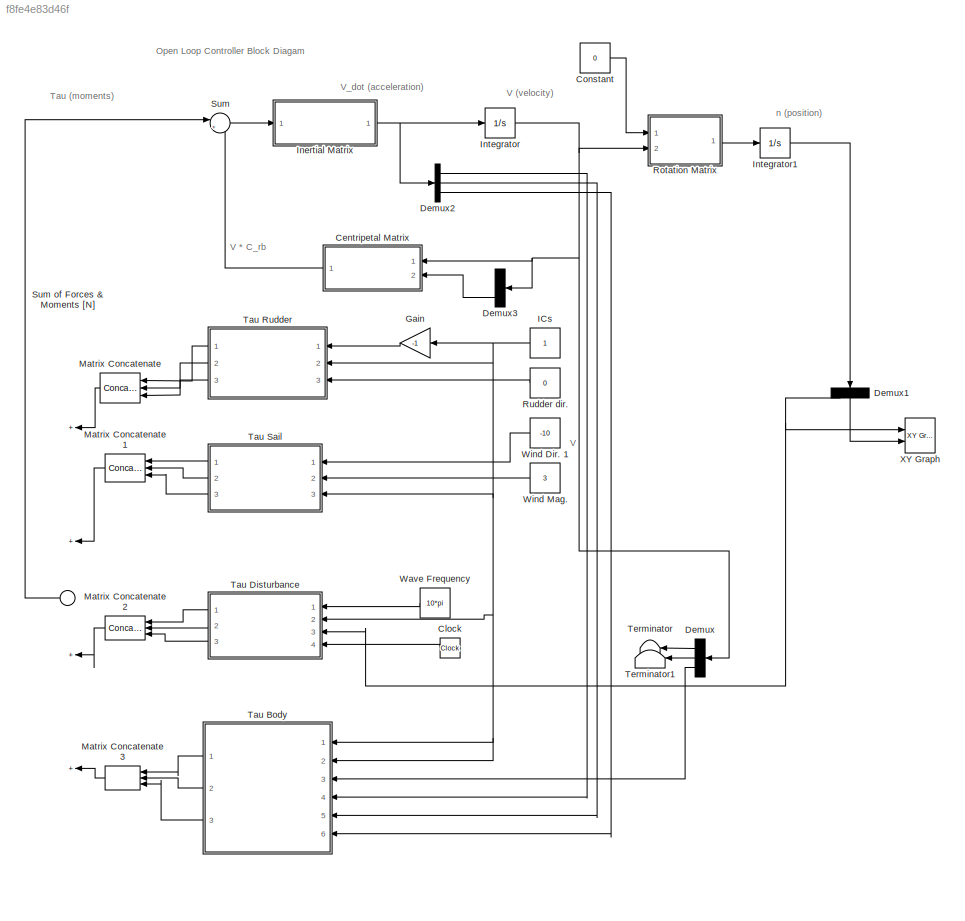
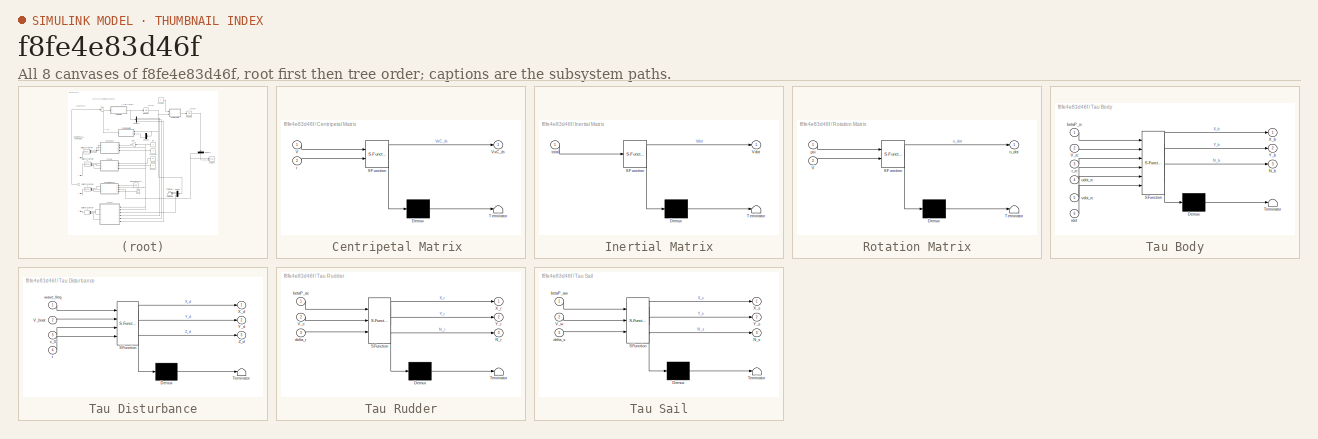
[diagram: thumbnail index - all 8 canvases of the model, root first then tree order]
MODEL slx_f8fe4e83d46f
KIND model
CONFIG AbsTol = auto
CONFIG EnableMultiTasking = off
CONFIG FixedStep = auto
CONFIG MaxStep = auto
CONFIG MinStep = auto
CONFIG PreLoadFcn = load('Sailboat_Constants_1.mat')
CONFIG RelTol = 1e-3
CONFIG SampleTimeConstraint = Unconstrained
CONFIG Solver = VariableStepAuto
CONFIG SolverName = VariableStepAuto
CONFIG StartTime = 0.0
CONFIG StopTime = 10.0
BLOCK [SubSystem] Centripetal Matrix 
  ErrorFcn = Stateflow.Translate.translate
  PermitHierarchicalResolution = ExplicitOnly
  Ports = [2, 1]
  RequestExecContextInheritance = off
  SFBlockType = MATLAB Function
  TreatAsAtomicUnit = on
  Variant = off
BLOCK [Demux] Centripetal Matrix / Demux 
  Outputs = 1
  Ports = [1, 1]
BLOCK [S-Function] Centripetal Matrix / SFunction 
  EnableBusSupport = on
  FunctionName = sf_sfun
  PortCounts = [2 2]
  Ports = [2, 2]
  SFcnIsStateOwnerBlock = off
  SFunctionDeploymentMode = off
  Tag = Stateflow S-Function Open_loop_sailboat 7
BLOCK [Terminator] Centripetal Matrix / Terminator 
BLOCK [Inport] Centripetal Matrix /V
  IconDisplay = Port number
BLOCK [Outport] Centripetal Matrix /VxC_rb
  IconDisplay = Port number
BLOCK [Inport] Centripetal Matrix /r
  IconDisplay = Port number
  Port = 2
BLOCK [Clock] Clock
BLOCK [Constant] Constant
  Value = 0
BLOCK [Demux] Demux
  DisplayOption = bar
  Outputs = 3
  Ports = [1, 3]
BLOCK [Demux] Demux1
  DisplayOption = bar
  Outputs = 3
  Ports = [1, 3]
BLOCK [Demux] Demux2
  DisplayOption = bar
  Outputs = 3
  Ports = [1, 3]
BLOCK [Demux] Demux3
  DisplayOption = bar
  Outputs = 3
  Ports = [1, 3]
BLOCK [Gain] Gain
  Gain = -1
  OutDataTypeStr = Inherit: Inherit via internal rule
  ParamDataTypeStr = Inherit: Inherit via internal rule
  SaturateOnIntegerOverflow = off
BLOCK [Constant] ICs
BLOCK [SubSystem] Inertial Matrix
  ErrorFcn = Stateflow.Translate.translate
  PermitHierarchicalResolution = ExplicitOnly
  Ports = [1, 1]
  RequestExecContextInheritance = off
  SFBlockType = MATLAB Function
  TreatAsAtomicUnit = on
  Variant = off
BLOCK [Demux] Inertial Matrix/ Demux 
  Outputs = 1
  Ports = [1, 1]
BLOCK [S-Function] Inertial Matrix/ SFunction 
  EnableBusSupport = on
  FunctionName = sf_sfun
  PortCounts = [1 2]
  Ports = [1, 2]
  SFcnIsStateOwnerBlock = off
  SFunctionDeploymentMode = off
  Tag = Stateflow S-Function Open_loop_sailboat 5
BLOCK [Terminator] Inertial Matrix/ Terminator 
BLOCK [Outport] Inertial Matrix/Vdot
  IconDisplay = Port number
BLOCK [Inport] Inertial Matrix/total
  IconDisplay = Port number
BLOCK [Integrator] Integrator
  Ports = [1, 1]
BLOCK [Integrator] Integrator1
  Ports = [1, 1]
BLOCK [Concatenate] Matrix Concatenate
  Mode = Multidimensional array
  NumInputs = 3
  Ports = [3, 1]
BLOCK [Concatenate] Matrix Concatenate1
  Mode = Multidimensional array
  NumInputs = 3
  Ports = [3, 1]
BLOCK [Concatenate] Matrix Concatenate2
  Mode = Multidimensional array
  NumInputs = 3
  Ports = [3, 1]
BLOCK [Concatenate] Matrix Concatenate3
  Mode = Multidimensional array
  NumInputs = 3
  Ports = [3, 1]
BLOCK [SubSystem] Rotation Matrix
  ErrorFcn = Stateflow.Translate.translate
  PermitHierarchicalResolution = ExplicitOnly
  Ports = [2, 1]
  RequestExecContextInheritance = off
  SFBlockType = MATLAB Function
  TreatAsAtomicUnit = on
  Variant = off
BLOCK [Demux] Rotation Matrix/ Demux 
  Outputs = 1
  Ports = [1, 1]
BLOCK [S-Function] Rotation Matrix/ SFunction 
  EnableBusSupport = on
  FunctionName = sf_sfun
  PortCounts = [2 2]
  Ports = [2, 2]
  SFcnIsStateOwnerBlock = off
  SFunctionDeploymentMode = off
  Tag = Stateflow S-Function Open_loop_sailboat 6
BLOCK [Terminator] Rotation Matrix/ Terminator 
BLOCK [Inport] Rotation Matrix/V
  IconDisplay = Port number
  Port = 2
BLOCK [Outport] Rotation Matrix/n_dot
  IconDisplay = Port number
BLOCK [Inport] Rotation Matrix/psi
  IconDisplay = Port number
BLOCK [Constant] Rudder dir.
  Value = 0
BLOCK [Sum] Sum
  IconShape = round
  InputSameDT = off
  Inputs = |+-
  OutDataTypeStr = Inherit: Inherit via internal rule
  Ports = [2, 1]
  SaturateOnIntegerOverflow = off
BLOCK [Sum] Sum of Forces & Moments [N] 
  InputSameDT = off
  Inputs = ++++
  OutDataTypeStr = Inherit: Inherit via internal rule
  Ports = [4, 1]
  SaturateOnIntegerOverflow = off
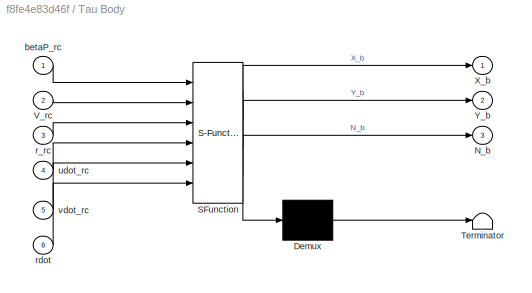
BLOCK [SubSystem] Tau Body
  ErrorFcn = Stateflow.Translate.translate
  PermitHierarchicalResolution = ExplicitOnly
  Ports = [6, 3]
  RequestExecContextInheritance = off
  SFBlockType = MATLAB Function
  TreatAsAtomicUnit = on
  Variant = off
BLOCK [Demux] Tau Body/ Demux 
  Outputs = 1
  Ports = [1, 1]
BLOCK [S-Function] Tau Body/ SFunction 
  EnableBusSupport = on
  FunctionName = sf_sfun
  PortCounts = [6 4]
  Ports = [6, 4]
  SFcnIsStateOwnerBlock = off
  SFunctionDeploymentMode = off
  Tag = Stateflow S-Function Open_loop_sailboat 3
BLOCK [Terminator] Tau Body/ Terminator 
BLOCK [Outport] Tau Body/N_b
  IconDisplay = Port number
  Port = 3
BLOCK [Inport] Tau Body/V_rc
  IconDisplay = Port number
  Port = 2
BLOCK [Outport] Tau Body/X_b
  IconDisplay = Port number
BLOCK [Outport] Tau Body/Y_b
  IconDisplay = Port number
  Port = 2
BLOCK [Inport] Tau Body/betaP_rc
  IconDisplay = Port number
BLOCK [Inport] Tau Body/r_rc
  IconDisplay = Port number
  Port = 3
BLOCK [Inport] Tau Body/rdot
  IconDisplay = Port number
  Port = 6
BLOCK [Inport] Tau Body/udot_rc
  IconDisplay = Port number
  Port = 4
BLOCK [Inport] Tau Body/vdot_rc
  IconDisplay = Port number
  Port = 5
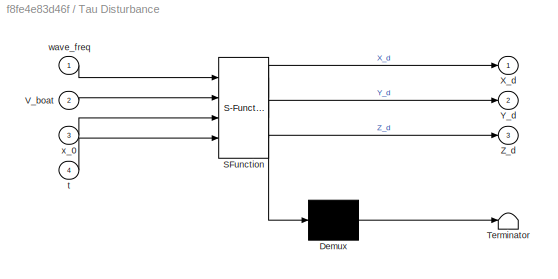
BLOCK [SubSystem] Tau Disturbance
  ErrorFcn = Stateflow.Translate.translate
  PermitHierarchicalResolution = ExplicitOnly
  Ports = [4, 3]
  RequestExecContextInheritance = off
  SFBlockType = MATLAB Function
  TreatAsAtomicUnit = on
  Variant = off
BLOCK [Demux] Tau Disturbance/ Demux 
  Outputs = 1
  Ports = [1, 1]
BLOCK [S-Function] Tau Disturbance/ SFunction 
  EnableBusSupport = on
  FunctionName = sf_sfun
  PortCounts = [4 4]
  Ports = [4, 4]
  SFcnIsStateOwnerBlock = off
  SFunctionDeploymentMode = off
  Tag = Stateflow S-Function Open_loop_sailboat 4
BLOCK [Terminator] Tau Disturbance/ Terminator 
BLOCK [Inport] Tau Disturbance/V_boat
  IconDisplay = Port number
  Port = 2
BLOCK [Outport] Tau Disturbance/X_d
  IconDisplay = Port number
BLOCK [Outport] Tau Disturbance/Y_d
  IconDisplay = Port number
  Port = 2
BLOCK [Outport] Tau Disturbance/Z_d
  IconDisplay = Port number
  Port = 3
BLOCK [Inport] Tau Disturbance/t
  IconDisplay = Port number
  Port = 4
BLOCK [Inport] Tau Disturbance/wave_freq
  IconDisplay = Port number
BLOCK [Inport] Tau Disturbance/x_0
  IconDisplay = Port number
  Port = 3
BLOCK [SubSystem] Tau Rudder
  ErrorFcn = Stateflow.Translate.translate
  PermitHierarchicalResolution = ExplicitOnly
  Ports = [3, 3]
  RequestExecContextInheritance = off
  SFBlockType = MATLAB Function
  TreatAsAtomicUnit = on
  Variant = off
BLOCK [Demux] Tau Rudder/ Demux 
  Outputs = 1
  Ports = [1, 1]
BLOCK [S-Function] Tau Rudder/ SFunction 
  EnableBusSupport = on
  FunctionName = sf_sfun
  PortCounts = [3 4]
  Ports = [3, 4]
  SFcnIsStateOwnerBlock = off
  SFunctionDeploymentMode = off
  Tag = Stateflow S-Function Open_loop_sailboat 2
BLOCK [Terminator] Tau Rudder/ Terminator 
BLOCK [Outport] Tau Rudder/N_r
  IconDisplay = Port number
  Port = 3
BLOCK [Inport] Tau Rudder/V_c
  IconDisplay = Port number
  Port = 2
BLOCK [Outport] Tau Rudder/X_r
  IconDisplay = Port number
BLOCK [Outport] Tau Rudder/Y_r
  IconDisplay = Port number
  Port = 2
BLOCK [Inport] Tau Rudder/betaP_ac
  IconDisplay = Port number
BLOCK [Inport] Tau Rudder/delta_r
  IconDisplay = Port number
  Port = 3
BLOCK [SubSystem] Tau Sail
  ErrorFcn = Stateflow.Translate.translate
  PermitHierarchicalResolution = ExplicitOnly
  Ports = [3, 3]
  RequestExecContextInheritance = off
  SFBlockType = MATLAB Function
  TreatAsAtomicUnit = on
  Variant = off
BLOCK [Demux] Tau Sail/ Demux 
  Outputs = 1
  Ports = [1, 1]
BLOCK [S-Function] Tau Sail/ SFunction 
  EnableBusSupport = on
  FunctionName = sf_sfun
  PortCounts = [3 4]
  Ports = [3, 4]
  SFcnIsStateOwnerBlock = off
  SFunctionDeploymentMode = off
  Tag = Stateflow S-Function Open_loop_sailboat 1
BLOCK [Terminator] Tau Sail/ Terminator 
BLOCK [Outport] Tau Sail/N_s
  IconDisplay = Port number
  Port = 3
BLOCK [Inport] Tau Sail/V_w
  IconDisplay = Port number
  Port = 2
BLOCK [Outport] Tau Sail/X_s
  IconDisplay = Port number
BLOCK [Outport] Tau Sail/Y_s
  IconDisplay = Port number
  Port = 2
BLOCK [Inport] Tau Sail/betaP_aw
  IconDisplay = Port number
BLOCK [Inport] Tau Sail/delta_s
  IconDisplay = Port number
  Port = 3
BLOCK [Terminator] Terminator
BLOCK [Terminator] Terminator1
BLOCK [Constant] Wave Frequency
  Value = 10*pi
BLOCK [Constant] Wind Dir. 1
  Value = -10
BLOCK [Constant] Wind Mag. 
  Value = 3
BLOCK [Reference] XY Graph  REF=simulink/Sinks/XY Graph
  Ports = [2]
  SourceBlock = simulink/Sinks/XY Graph
  SourceProductBaseCode = SL
  SourceProductName = Simulink
  SourceType = XY scope.
ANNOTATION (root): Open Loop Controller Block Diagam
ANNOTATION (root): Tau (moments)
ANNOTATION (root): V
ANNOTATION (root): V (velocity)
ANNOTATION (root): V * C_rb
ANNOTATION (root): V_dot (acceleration)
ANNOTATION (root): n (position)
LINE Centripetal Matrix :1 -> Sum:2
LINE Clock:1 -> Tau Disturbance:4
LINE Constant:1 -> Rotation Matrix:1
NET Demux1:1 -> Tau Disturbance:3, XY Graph:1
LINE Demux1:2 -> XY Graph:2
LINE Demux2:1 -> Tau Body:4
LINE Demux2:2 -> Tau Body:5
LINE Demux2:3 -> Tau Body:6
LINE Demux3:3 -> Centripetal Matrix :2
LINE Demux:1 -> Terminator:1
LINE Demux:2 -> Terminator1:1
LINE Demux:3 -> Tau Body:3
LINE Gain:1 -> Tau Rudder:1
NET ICs:1 -> Gain:1, Tau Body:1, Tau Body:2, Tau Disturbance:2, Tau Rudder:2, Tau Sail:3
NET Inertial Matrix:1 -> Demux2:1, Integrator:1
LINE Integrator1:1 -> Demux1:1
NET Integrator:1 -> Centripetal Matrix :1, Demux3:1, Demux:1, Rotation Matrix:2
LINE Matrix Concatenate1:1 -> Sum of Forces & Moments [N] :2
LINE Matrix Concatenate2:1 -> Sum of Forces & Moments [N] :3
LINE Matrix Concatenate3:1 -> Sum of Forces & Moments [N] :4
LINE Matrix Concatenate:1 -> Sum of Forces & Moments [N] :1
LINE Rotation Matrix:1 -> Integrator1:1
LINE Rudder dir.:1 -> Tau Rudder:3
LINE Sum of Forces & Moments [N] :1 -> Sum:1
LINE Sum:1 -> Inertial Matrix:1
LINE Tau Body:1 -> Matrix Concatenate3:1
LINE Tau Body:2 -> Matrix Concatenate3:2
LINE Tau Body:3 -> Matrix Concatenate3:3
LINE Tau Disturbance:1 -> Matrix Concatenate2:1
LINE Tau Disturbance:2 -> Matrix Concatenate2:2
LINE Tau Disturbance:3 -> Matrix Concatenate2:3
LINE Tau Rudder:1 -> Matrix Concatenate:1
LINE Tau Rudder:2 -> Matrix Concatenate:2
LINE Tau Rudder:3 -> Matrix Concatenate:3
LINE Tau Sail:1 -> Matrix Concatenate1:1
LINE Tau Sail:2 -> Matrix Concatenate1:2
LINE Tau Sail:3 -> Matrix Concatenate1:3
LINE Wave Frequency:1 -> Tau Disturbance:1
LINE Wind Dir. 1:1 -> Tau Sail:1
LINE Wind Mag. :1 -> Tau Sail:2
note: NET lines group one-source signal fan-out (src -> all destinations, sorted); 1:1 wires keep LINE
CHART Tau Sail states=1 transitions=1
  STATE_LABEL 'eML_blk_kernel()'
  STATE_LABEL 'SCRIPT:\n% Control Surface Force: Sail \nfunction [X_s,  Y_s,  N_s] = tauSail(betaP_aw, V_w, delta_s)\n% Equations for tauSail, control surface force of the sail\n% betaP_aw [deg]: direction of the apparent wind velocity, measured clockwise\n% from the positive x-axis of the body\n% V_w [m/s]: magnitude of the apparent wind velocity \n% delta_s [deg]: angle of the sail\n\n% constants \nC_ls = 1;\nrho_w = 1.2...<+594ch>'
CHART Tau Rudder states=1 transitions=1
  STATE_LABEL 'eML_blk_kernel()'
  STATE_LABEL 'SCRIPT:\n% Control Surface Force: Rudder\nfunction [X_r, Y_r, N_r] = tauRudder(betaP_ac, V_c, delta_r)\n% Equations for tauRudder, control surface force of the rudder \n% betaP_ac [deg]: direction of the apparent water velocity, measured clockwise\n% from the positive x-axis of the body (opposite of boat velocity) \n% V_c [m/s]: magnitude of the apparent water velocity (same as boat\n% velocity)\n% delta_...<+661ch>'
CHART Tau Body states=1 transitions=1
  STATE_LABEL 'eML_blk_kernel()'
  STATE_LABEL 'SCRIPT:\n% Body Forces: Rigid Body, Added Mass, and Damping \nfunction [X_b, Y_b, N_b] = tauBody(betaP_rc, V_rc, r_rc, udot_rc, vdot_rc, rdot)\n% Equations for the hydrodynamic body forces on the hull due to the rigid\n% body, the added mass, and damping \n% betaP_rc [deg]: direction of the relative sailboat velocity to the current\n% (current assumed to have a negligible velocity) \n% V_rc [m/s]: magnit...<+2057ch>'
CHART Tau Disturbance states=1 transitions=1
  STATE_LABEL 'eML_blk_kernel()'
  STATE_LABEL 'SCRIPT:\n% Calculations for the disturbance forces for the sailboat simulation.\n% Utilizes parameters from the physical boat (beam, length, draft),\n% parameters of the fluid (density), and models waves as a sinusoid whose \n% frequency is a function of the velocity of the waves as well as the\n% boat velocity. \n%\n% Inputs: wave frequency (wave_freq), boat speed (V_boat), wave height (h)\n% Outputs: re...<+1113ch>'
CHART Inertial Matrix states=1 transitions=1
  STATE_LABEL 'eML_blk_kernel()'
  STATE_LABEL 'SCRIPT:\nfunction Vdot = M_rb(total)\n% Function: The inertial matrix function takes inputs\n% 1. forces & moments 2. V*C_rb\n% and multiplies the inputs by the inverse of M\n\n% constants \nm_ship = 4;\nI_z = 0.09; \n\nM = [m_ship, 0, 0; 0, m_ship, 0; 0, 0, I_z]; % Inertial Matrix\ninvM = inv(M);\nVdot = invM*total; % outputs results in V_dot\n\n% JL 4/6/18\n% edited JL 4/10/18\n\n\n'
CHART Rotation Matrix states=1 transitions=1
  STATE_LABEL 'eML_blk_kernel()'
  STATE_LABEL 'SCRIPT:\nfunction n_dot = J(psi,V)\n\n\nR = [ cosd(psi), -sind(psi), 0; sind(psi), cosd(psi),0; 0, 0,1];\n\nn_dot = R*V; \n\n'
CHART Centripetal Matrix  states=1 transitions=1
  STATE_LABEL 'eML_blk_kernel()'
  STATE_LABEL 'SCRIPT:\nfunction VxC_rb = C_rb(V,r)\n% function that contains the Centripetal Matrix\n% inputs: V (velocity of sailboat)\n% outputs: V*C_rb \n\n%constants \nm_ship = 4; % kg, mass of ship \n\n\n\nC_rb = [ 0, -m_ship*r, 0; m_ship*r, 0, 0; 0,0,0];\nVxC_rb = C_rb*V;\n\nend\n\n'
